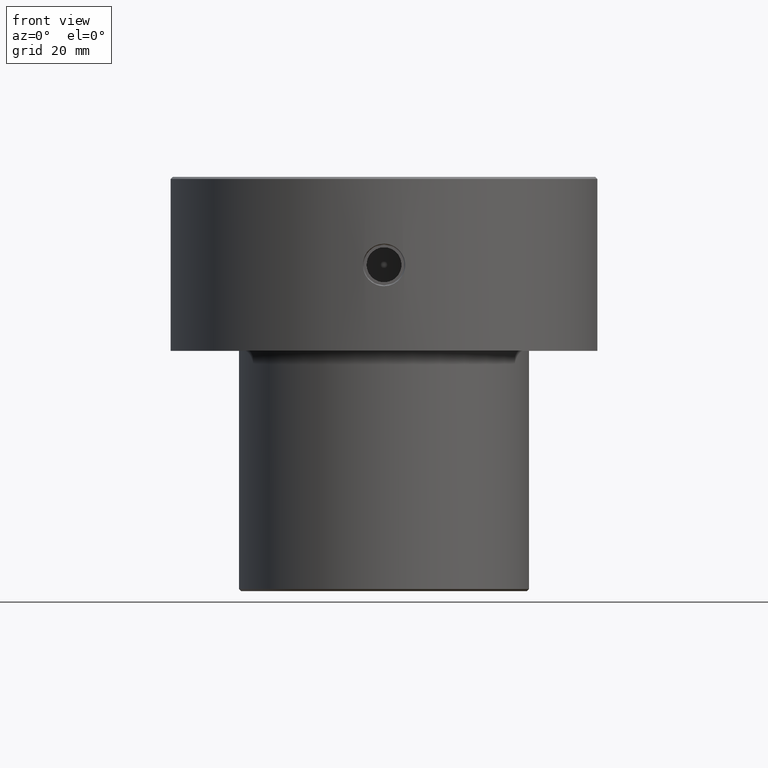
[diagram: clean part render]
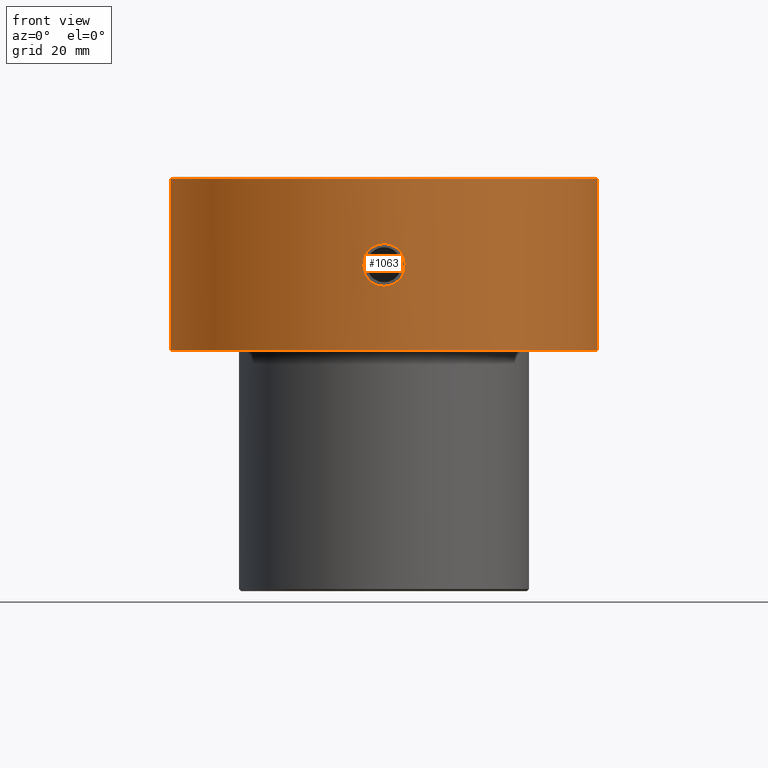
[diagram: same view with one face highlighted and labeled with its STEP entity id]
A machine part, front view. The second image highlights one B-rep face of the part: STEP entity #1063.
In plain terms, the highlighted cylindrical surface (partial cylindrical patch) has radius 51.5 mm, axis along (-0, -0, 1).
Its self-contained STEP definition (entity closure, byte-faithful):
#20 = CARTESIAN_POINT ( 'NONE',  ( -0.3350734043244900651, -51.50000000000000000, -26.39337299999999331 ) ) ;
#25 = EDGE_CURVE ( 'NONE', #1104, #419, #235, .T. ) ;
#32 = CARTESIAN_POINT ( 'NONE',  ( 3.868090047908823159, -51.35507909105496793, -17.85004502327221942 ) ) ;
#41 = CARTESIAN_POINT ( 'NONE',  ( 2.569935440570200846, -51.43605308306254642, -25.70627989238121103 ) ) ;
#49 = CARTESIAN_POINT ( 'NONE',  ( 1.334615805379071318, -51.48377902741052736, -26.22826705002438175 ) ) ;
#68 = CARTESIAN_POINT ( 'NONE',  ( -2.122390397132325468, -51.45648428634891758, -16.56333713622720438 ) ) ;
#103 = DIRECTION ( 'NONE',  ( 1.000000000000000000, 0.000000000000000000, 0.000000000000000000 ) ) ;
#107 = CARTESIAN_POINT ( 'NONE',  ( 1.166101079403363050, -51.48706274633448032, -16.23811354126406670 ) ) ;
#116 = CARTESIAN_POINT ( 'NONE',  ( 4.085644507848206430, -51.33802044068998782, -24.38439208705906225 ) ) ;
#122 = CARTESIAN_POINT ( 'NONE',  ( 4.809111397820574396, -51.27500999554197136, -23.06273107317452187 ) ) ;
#127 = CARTESIAN_POINT ( 'NONE',  ( 5.102417383276221408, -51.24665491347251844, -20.57613492145341283 ) ) ;
#152 = AXIS2_PLACEMENT_3D ( 'NONE', #1214, #452, #331 ) ;
#173 = VECTOR ( 'NONE', #749, 1000.000000000000000 ) ;
#181 = CARTESIAN_POINT ( 'NONE',  ( -4.084952459583112372, -51.33808047330343527, -24.38557191876200392 ) ) ;
#202 = CARTESIAN_POINT ( 'NONE',  ( -2.577214110619729048, -51.43622827599907055, -25.71146961298348899 ) ) ;
#206 = CARTESIAN_POINT ( 'NONE',  ( 3.868875284666686731, -51.35502223870823713, -24.64913067251421097 ) ) ;
#223 = CARTESIAN_POINT ( 'NONE',  ( 1.048222593639576067E-21, -51.50000000000000000, -26.39337300000000042 ) ) ;
#226 = EDGE_CURVE ( 'NONE', #282, #1104, #1221, .T. ) ;
#228 = CARTESIAN_POINT ( 'NONE',  ( 5.135759432686824333, -51.24328224318696101, -21.58781631127578393 ) ) ;
#232 = CARTESIAN_POINT ( 'NONE',  ( 2.573071245024807219, -51.43645422318999039, -16.78582650585409297 ) ) ;
#235 = CIRCLE ( 'NONE', #152, 51.50000000000000000 ) ;
#242 = CARTESIAN_POINT ( 'NONE',  ( 0.3353013208440320803, -51.50000000000000000, -26.39337300000000042 ) ) ;
#261 = CARTESIAN_POINT ( 'NONE',  ( 1.048222593639576067E-21, -51.50000000000000000, -26.39337300000000042 ) ) ;
#272 = CARTESIAN_POINT ( 'NONE',  ( -4.618922364095463529, -51.29261140151269416, -23.52332559415824065 ) ) ;
#282 = VERTEX_POINT ( 'NONE', #756 ) ;
#284 = CARTESIAN_POINT ( 'NONE',  ( 51.50000000000000000, 0.000000000000000000, -0.5000000000000004441 ) ) ;
#287 = ORIENTED_EDGE ( 'NONE', *, *, #1189, .T. ) ;
#301 = CARTESIAN_POINT ( 'NONE',  ( 4.866411394179904981, -51.26958591014203392, -22.90220319035053365 ) ) ;
#323 = DIRECTION ( 'NONE',  ( 1.000000000000000000, 0.000000000000000000, 0.000000000000000000 ) ) ;
#325 = CARTESIAN_POINT ( 'NONE',  ( 3.136185333612287351, -51.40519293067121254, -17.16291568919610100 ) ) ;
#331 = DIRECTION ( 'NONE',  ( 1.000000000000000000, 0.000000000000000000, 0.000000000000000000 ) ) ;
#344 = CARTESIAN_POINT ( 'NONE',  ( 1.657110490166086914, -51.47426363476713362, -26.12980794330655954 ) ) ;
#364 = CARTESIAN_POINT ( 'NONE',  ( -3.394174496679403408, -51.38858751863610053, -17.37521538122372178 ) ) ;
#370 = CARTESIAN_POINT ( 'NONE',  ( -5.135571099062696376, -51.24330111829166157, -20.91314367667845531 ) ) ;
#375 = CARTESIAN_POINT ( 'NONE',  ( -4.972038158280625453, -51.25946938272897313, -22.58188047283348254 ) ) ;
#385 = EDGE_LOOP ( 'NONE', ( #1004, #896 ) ) ;
#401 = VERTEX_POINT ( 'NONE', #408 ) ;
#408 = CARTESIAN_POINT ( 'NONE',  ( -51.50000000000000000, 6.306931015608868807E-15, -42.00000000000000000 ) ) ;
#414 = CARTESIAN_POINT ( 'NONE',  ( -51.50000000000000000, 6.306931015608868807E-15, -0.5000000000000004441 ) ) ;
#419 = VERTEX_POINT ( 'NONE', #414 ) ;
#426 = CARTESIAN_POINT ( 'NONE',  ( 3.394848946332763351, -51.38853247271054414, -17.37609873495068413 ) ) ;
#435 = CARTESIAN_POINT ( 'NONE',  ( 2.716055077494536008, -51.42852049064780573, -25.61849436601665531 ) ) ;
#441 = AXIS2_PLACEMENT_3D ( 'NONE', #1250, #1161, #103 ) ;
#452 = DIRECTION ( 'NONE',  ( 0.000000000000000000, 0.000000000000000000, -1.000000000000000000 ) ) ;
#456 = CYLINDRICAL_SURFACE ( 'NONE', #583, 51.50000000000000000 ) ;
#464 = CARTESIAN_POINT ( 'NONE',  ( -2.572853543023277734, -51.43590637866683579, -16.79541911679499222 ) ) ;
#470 = CARTESIAN_POINT ( 'NONE',  ( -4.873419098527694615, -51.26905909255087579, -19.59290484552858302 ) ) ;
#476 = CARTESIAN_POINT ( 'NONE',  ( -0.3356552540832114517, -51.50000000000000000, -16.10662700000000669 ) ) ;
#478 = CARTESIAN_POINT ( 'NONE',  ( 51.50000000000000000, 0.000000000000000000, 0.000000000000000000 ) ) ;
#498 = CARTESIAN_POINT ( 'NONE',  ( 0.3358835663762500534, -51.50000000000001421, -16.10662700000000314 ) ) ;
#500 = CARTESIAN_POINT ( 'NONE',  ( -0.6752129084959268557, -51.49663065334000578, -26.35984570715628550 ) ) ;
#501 = EDGE_CURVE ( 'NONE', #1146, #613, #883, .T. ) ;
#506 = CARTESIAN_POINT ( 'NONE',  ( 0.6694074120081875412, -51.49671427971136950, -16.13930995566505899 ) ) ;
#524 = CARTESIAN_POINT ( 'NONE',  ( 4.971852313927572986, -51.25948680529477741, -19.91831370292505454 ) ) ;
#525 = CIRCLE ( 'NONE', #441, 51.50000000000000000 ) ;
#551 = CARTESIAN_POINT ( 'NONE',  ( 0.000000000000000000, 0.000000000000000000, 0.000000000000000000 ) ) ;
#559 = EDGE_CURVE ( 'NONE', #401, #419, #1026, .T. ) ;
#560 = CARTESIAN_POINT ( 'NONE',  ( 6.298815310959837949E-16, -51.50000000000000000, -16.10662700000000314 ) ) ;
#583 = AXIS2_PLACEMENT_3D ( 'NONE', #551, #836, #323 ) ;
#613 = VERTEX_POINT ( 'NONE', #1128 ) ;
#623 = CARTESIAN_POINT ( 'NONE',  ( 1.654020674870432028, -51.47368487990468111, -16.37775195547085971 ) ) ;
#639 = CARTESIAN_POINT ( 'NONE',  ( 2.272775390774277149, -51.45004000926935106, -25.86538700450402928 ) ) ;
#651 = B_SPLINE_CURVE_WITH_KNOTS ( 'NONE', 3,
 ( #560, #476, #1218, #934, #1125, #68, #1245, #464, #845, #1226, #364, #1046, #770, #1130, #942, #470, #854, #1232, #370, #755, #1238, #375, #764, #272, #664, #181, #678, #1066, #787, #202, #1072, #878, #1167, #500, #20, #223 ),
 .UNSPECIFIED., .F., .F.,
 ( 4, 2, 2, 2, 2, 2, 2, 2, 2, 2, 2, 2, 2, 2, 2, 2, 2, 4 ),
 ( 0.02019024682009542063, 0.02119471988690419320, 0.02219919295371296925, 0.02270142948711735553, 0.02320366602052174529, 0.02420813908733053174, 0.02521261215413931472, 0.02621708522094810118, 0.02722155828775688763, 0.02822603135456567408, 0.02923050442137446053, 0.03023497748818324699, 0.03123945055499203344, 0.03224392362180081989, 0.03324839668860960634, 0.03425286975541839279, 0.03525734282222717925, 0.03626181588903596570 ),
 .UNSPECIFIED. ) ;
#657 = CARTESIAN_POINT ( 'NONE',  ( 3.136210703289033397, -51.40518342140642005, -25.33692630218639508 ) ) ;
#664 = CARTESIAN_POINT ( 'NONE',  ( -4.459652610896620573, -51.30688883444945958, -23.82304282523870143 ) ) ;
#678 = CARTESIAN_POINT ( 'NONE',  ( -3.870388291433632499, -51.35491700579432006, -24.64766394908491520 ) ) ;
#690 = CARTESIAN_POINT ( 'NONE',  ( 4.615444507740382285, -51.29292706423705539, -18.96935145740248529 ) ) ;
#697 = ORIENTED_EDGE ( 'NONE', *, *, #226, .T. ) ;
#710 = CARTESIAN_POINT ( 'NONE',  ( 3.394642827361414206, -51.38854838561958616, -25.12414554227154539 ) ) ;
#715 = CARTESIAN_POINT ( 'NONE',  ( 2.275792585293514136, -51.45062238089825257, -16.62701780103406080 ) ) ;
#731 = CARTESIAN_POINT ( 'NONE',  ( 2.121122820814869137, -51.45653307363946993, -25.93719350975683113 ) ) ;
#749 = DIRECTION ( 'NONE',  ( -0.000000000000000000, -0.000000000000000000, 1.000000000000000000 ) ) ;
#755 = CARTESIAN_POINT ( 'NONE',  ( -5.135801780001337136, -51.24327799907001690, -21.58331015971613454 ) ) ;
#756 = CARTESIAN_POINT ( 'NONE',  ( 51.50000000000000000, 0.000000000000000000, -42.00000000000000000 ) ) ;
#764 = CARTESIAN_POINT ( 'NONE',  ( -4.874176289879716961, -51.26898510490826055, -22.90456670123846195 ) ) ;
#770 = CARTESIAN_POINT ( 'NONE',  ( -4.083870080060343355, -51.33816113792820346, -18.11335087147658740 ) ) ;
#785 = CARTESIAN_POINT ( 'NONE',  ( 5.004541009587042844, -51.25627417810104447, -22.41700138948911913 ) ) ;
#786 = ORIENTED_EDGE ( 'NONE', *, *, #559, .F. ) ;
#787 = CARTESIAN_POINT ( 'NONE',  ( -3.133535059618951291, -51.40533600573779438, -25.33878848935032124 ) ) ;
#792 = CARTESIAN_POINT ( 'NONE',  ( 4.457634637478083306, -51.30705923410508262, -23.82621273787369631 ) ) ;
#836 = DIRECTION ( 'NONE',  ( -0.000000000000000000, -0.000000000000000000, 1.000000000000000000 ) ) ;
#845 = CARTESIAN_POINT ( 'NONE',  ( -2.716438236506895976, -51.42849729473772413, -16.88179572973227494 ) ) ;
#853 = ORIENTED_EDGE ( 'NONE', *, *, #25, .T. ) ;
#854 = CARTESIAN_POINT ( 'NONE',  ( -4.970545045048587518, -51.25961420767220744, -19.91315521511948816 ) ) ;
#875 = CARTESIAN_POINT ( 'NONE',  ( 4.872762613667714682, -51.26912208466235654, -19.59091961400270065 ) ) ;
#878 = CARTESIAN_POINT ( 'NONE',  ( -1.655189781649638592, -51.47433215661397554, -26.13054333015325170 ) ) ;
#883 = B_SPLINE_CURVE_WITH_KNOTS ( 'NONE', 3,
 ( #910, #242, #1007, #49, #344, #731, #639, #41, #435, #657, #710, #206, #116, #792, #905, #122, #301, #1088, #785, #1165, #228, #985, #127, #524, #875, #690, #1070, #975, #32, #426, #325, #232, #715, #1095, #623, #1002, #107, #506, #498, #886 ),
 .UNSPECIFIED., .F., .F.,
 ( 4, 2, 2, 2, 2, 2, 2, 2, 2, 2, 2, 2, 2, 2, 2, 2, 2, 2, 2, 4 ),
 ( 0.004107745889543262287, 0.005112902197702762913, 0.006118058505862263539, 0.006620636659942015154, 0.007123214814021767635, 0.008128371122181272598, 0.009133527430340777561, 0.01013868373850028252, 0.01064126189258003501, 0.01114384004665978575, 0.01214899635481930112, 0.01315415266297881650, 0.01415930897113833187, 0.01516446527929784724, 0.01616962158745736261, 0.01717477789561687798, 0.01817993420377638988, 0.01868251235785614930, 0.01918509051193590526, 0.02019024682009542063 ),
 .UNSPECIFIED. ) ;
#886 = CARTESIAN_POINT ( 'NONE',  ( 6.298815310959837949E-16, -51.50000000000000000, -16.10662700000000314 ) ) ;
#896 = ORIENTED_EDGE ( 'NONE', *, *, #1178, .F. ) ;
#905 = CARTESIAN_POINT ( 'NONE',  ( 4.615458871489047432, -51.29292689371413161, -23.53081845748871359 ) ) ;
#910 = CARTESIAN_POINT ( 'NONE',  ( 1.048222593639576067E-21, -51.50000000000000000, -26.39337300000000042 ) ) ;
#916 = CARTESIAN_POINT ( 'NONE',  ( -51.50000000000000000, 6.306931015608868807E-15, 0.000000000000000000 ) ) ;
#929 = FACE_BOUND ( 'NONE', #385, .T. ) ;
#934 = CARTESIAN_POINT ( 'NONE',  ( -1.334511350930534856, -51.48375855101124898, -16.27195165724317860 ) ) ;
#942 = CARTESIAN_POINT ( 'NONE',  ( -4.616570975055003245, -51.29282509647570976, -18.97167582135471875 ) ) ;
#955 = DIRECTION ( 'NONE',  ( -0.000000000000000000, -0.000000000000000000, 1.000000000000000000 ) ) ;
#975 = CARTESIAN_POINT ( 'NONE',  ( 4.084600155122266152, -51.33810581497413494, -18.11413077232103319 ) ) ;
#980 = VECTOR ( 'NONE', #955, 1000.000000000000000 ) ;
#985 = CARTESIAN_POINT ( 'NONE',  ( 5.135613818990137247, -51.24329683683077263, -20.90997058817930210 ) ) ;
#1002 = CARTESIAN_POINT ( 'NONE',  ( 1.331544956519863598, -51.48303611421331993, -16.27964254438147762 ) ) ;
#1004 = ORIENTED_EDGE ( 'NONE', *, *, #501, .F. ) ;
#1007 = CARTESIAN_POINT ( 'NONE',  ( 0.6693026806619063462, -51.49672549019852141, -26.36080848415118894 ) ) ;
#1016 = EDGE_LOOP ( 'NONE', ( #786, #287, #697, #853 ) ) ;
#1026 = LINE ( 'NONE', #916, #173 ) ;
#1046 = CARTESIAN_POINT ( 'NONE',  ( -3.871928745888957746, -51.35480031565879955, -17.85409872166449219 ) ) ;
#1063 = ADVANCED_FACE ( 'NONE', ( #1099, #929 ), #456, .T. ) ;
#1066 = CARTESIAN_POINT ( 'NONE',  ( -3.392389233153937589, -51.38870597212261515, -25.12635399936055691 ) ) ;
#1070 = CARTESIAN_POINT ( 'NONE',  ( 4.457834078572474823, -51.30704417937777606, -18.67399679769003029 ) ) ;
#1072 = CARTESIAN_POINT ( 'NONE',  ( -2.276103841329510047, -51.45061589025135618, -25.87292166544103367 ) ) ;
#1088 = CARTESIAN_POINT ( 'NONE',  ( 4.963928581033117737, -51.26023617090775986, -22.57976408175084515 ) ) ;
#1095 = CARTESIAN_POINT ( 'NONE',  ( 1.811917442048592397, -51.46834851635972541, -16.43444993656066089 ) ) ;
#1099 = FACE_OUTER_BOUND ( 'NONE', #1016, .T. ) ;
#1104 = VERTEX_POINT ( 'NONE', #284 ) ;
#1125 = CARTESIAN_POINT ( 'NONE',  ( -1.654922887784929353, -51.47434792857442432, -16.36927503999904232 ) ) ;
#1128 = CARTESIAN_POINT ( 'NONE',  ( 6.298815310959837949E-16, -51.50000000000000000, -16.10662700000000314 ) ) ;
#1130 = CARTESIAN_POINT ( 'NONE',  ( -4.455594510083999538, -51.30723595572462870, -18.67032462210925203 ) ) ;
#1146 = VERTEX_POINT ( 'NONE', #261 ) ;
#1161 = DIRECTION ( 'NONE',  ( -0.000000000000000000, -0.000000000000000000, 1.000000000000000000 ) ) ;
#1165 = CARTESIAN_POINT ( 'NONE',  ( 5.102355235093170904, -51.24666100736852314, -21.92415948591494868 ) ) ;
#1167 = CARTESIAN_POINT ( 'NONE',  ( -1.335029987352562175, -51.48375060202188536, -26.22796783234396045 ) ) ;
#1178 = EDGE_CURVE ( 'NONE', #613, #1146, #651, .T. ) ;
#1189 = EDGE_CURVE ( 'NONE', #401, #282, #525, .T. ) ;
#1214 = CARTESIAN_POINT ( 'NONE',  ( 0.000000000000000000, 0.000000000000000000, -0.5000000000000004441 ) ) ;
#1218 = CARTESIAN_POINT ( 'NONE',  ( -0.6764116674713784860, -51.49660942567671640, -16.14037076350564703 ) ) ;
#1221 = LINE ( 'NONE', #478, #980 ) ;
#1226 = CARTESIAN_POINT ( 'NONE',  ( -3.133331818491418730, -51.40534713884964191, -17.16107801846559511 ) ) ;
#1232 = CARTESIAN_POINT ( 'NONE',  ( -5.102074559861904390, -51.24668966821032967, -20.57299764770509398 ) ) ;
#1238 = CARTESIAN_POINT ( 'NONE',  ( -5.103538412688853221, -51.24654388850566988, -21.91707525582282656 ) ) ;
#1245 = CARTESIAN_POINT ( 'NONE',  ( -2.276262927525767310, -51.44988500894436356, -16.63634664762538407 ) ) ;
#1250 = CARTESIAN_POINT ( 'NONE',  ( 0.000000000000000000, 0.000000000000000000, -42.00000000000000000 ) ) ;